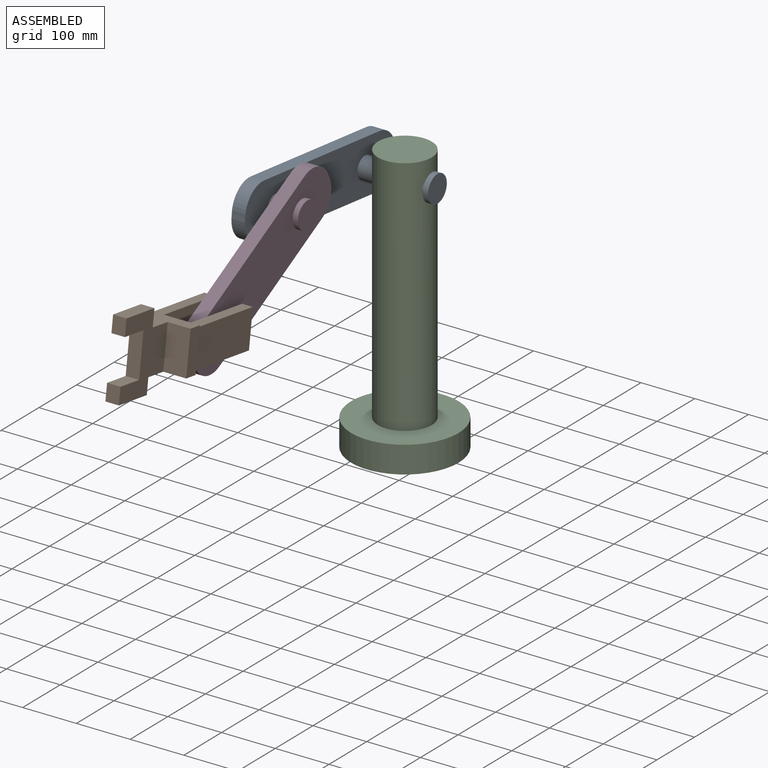
[diagram: assembled view]
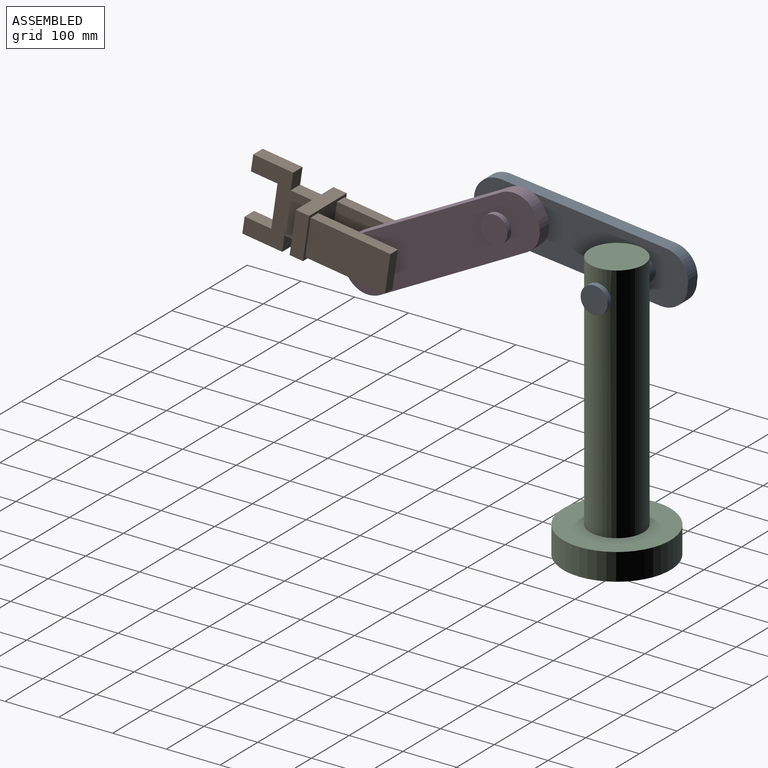
[diagram: assembled view, second angle]
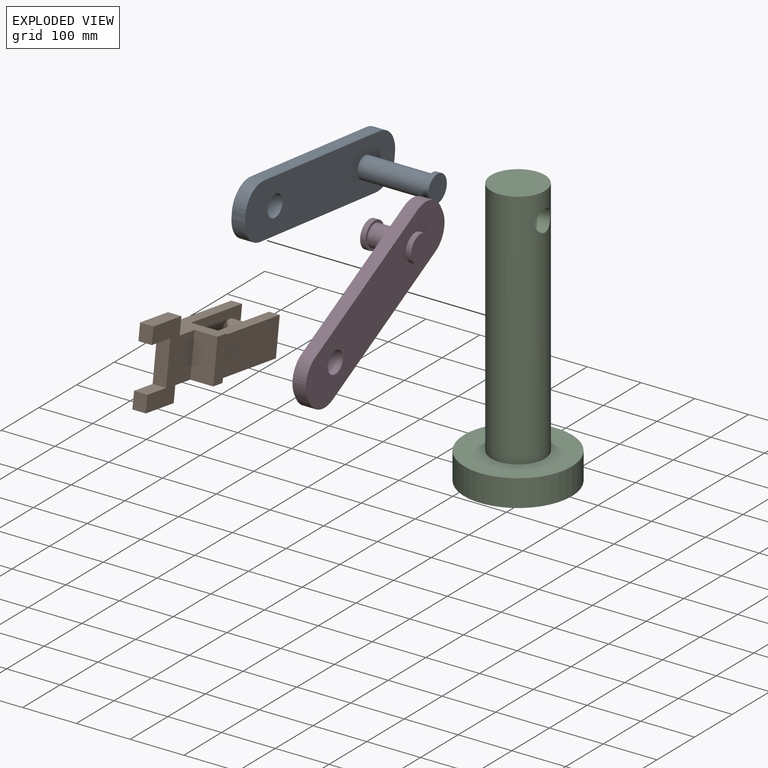
[diagram: exploded view]
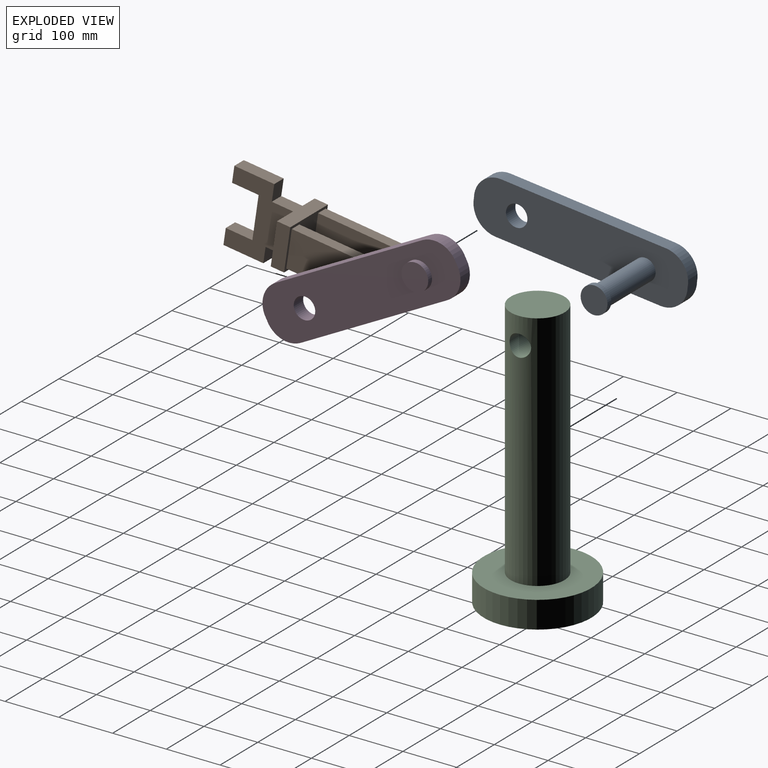
[diagram: exploded view, second angle]
ASSEMBLY  parts=4 mates=3
PART A: 17 faces, bbox 170x400.4x100 mm
  f0: cylinder r=20mm len=150mm, axis (1,0,0), area 17278.5mm2, adj f9,f10,f13,f16
  f1: plane 400.39x100mm, normal (-1,0,0), area 35015.2mm2, adj f2,f3,f4,f5,f6,f7,f8,f15
  f2: cylinder r=45.68mm len=50mm, axis (1,0,0), area 1914mm2, adj f1,f3,f8,f10
  f3: plane 309.05x25mm, normal (0,0,1), area 7726.1mm2, adj f1,f2,f4,f10
  f4: cylinder r=45.87mm len=50mm, axis (1,0,0), area 1887.7mm2, adj f1,f3,f5,f10
  f5: cylinder r=45.87mm len=50mm, axis (1,0,0), area 1887.7mm2, adj f1,f4,f6,f10
  f6: plane 310x25mm, normal (0,0,-1), area 7750mm2, adj f1,f5,f8,f10
  f7: cylinder r=20mm len=40mm, axis (1,0,0), area 3141.6mm2, adj f1,f10
  f8: cylinder r=45.87mm len=50mm, axis (1,0,0), area 1887.7mm2, adj f1,f2,f6,f10
  f9: cylinder r=20mm len=40mm, axis (1,0,0), area 1571.1mm2, adj f0,f10,f16
  f10: plane 400.39x100mm, normal (1,0,0), area 35721.6mm2, adj f0,f2,f3,f4,f5,f6,f7,f8
  f11: cylinder r=25mm len=50mm, axis (-1,0,0), area 1570.8mm2, adj f12,f13
  f12: plane 50x50mm, normal (1,0,0), area 1963.5mm2, adj f11
  f13: plane 50x50mm, normal (-1,0,0), area 706.9mm2, adj f0,f11
  f14: plane 50x50mm, normal (-1,0,0), area 1963.5mm2, adj f15
  f15: cylinder r=25mm len=50mm, axis (1,0,0), area 1570.8mm2, adj f1,f14
  f16: plane 40x20.01mm, normal (1,0,0), area 0.5mm2, adj f0,f9
PART B: 29 faces, bbox 100x290x140 mm
  f0: plane 80x25mm, normal (0,-1,0), area 2000mm2, adj f19,f20,f25,f27
  f1: plane 80x42.74mm, normal (0,-1,0), area 3419.1mm2, adj f2,f4,f5,f20
  f2: plane 100x65mm, normal (0,0,1), area 3500mm2, adj f1,f3,f5,f6,f7,f19,f20,f24
  f3: plane 80x25mm, normal (-1,0,0), area 2000mm2, adj f2,f4,f6,f7
  f4: plane 100x65mm, normal (0,0,-1), area 3500mm2, adj f1,f3,f5,f6,f7,f19,f20,f21
  f5: plane 80x25mm, normal (1,0,0), area 2000mm2, adj f1,f2,f4,f7
  f6: plane 80x32.26mm, normal (0,-1,0), area 2580.9mm2, adj f2,f3,f4,f19
  f7: plane 100x80mm, normal (0,1,0), area 5200mm2, adj f2,f3,f4,f5,f8,f9,f10,f11
  f8: plane 150x20mm, normal (0,0,1), area 3000mm2, adj f7,f9,f11,f12
  f9: plane 150x70mm, normal (1,0,0), area 10500mm2, adj f7,f8,f10,f12
  f10: plane 150x20mm, normal (0,0,-1), area 3000mm2, adj f7,f9,f11,f12
  f11: plane 150x70mm, normal (-1,0,0), area 9243.4mm2, adj f7,f8,f10,f12,f18
  f12: plane 70x20mm, normal (0,1,0), area 1400mm2, adj f8,f9,f10,f11
  f13: plane 150x20mm, normal (0,0,1), area 3000mm2, adj f7,f14,f16,f17
  f14: plane 150x70mm, normal (1,0,0), area 9243.4mm2, adj f7,f13,f15,f17,f18
  f15: plane 150x20mm, normal (0,0,-1), area 3000mm2, adj f7,f14,f16,f17
  f16: plane 150x70mm, normal (-1,0,0), area 10500mm2, adj f7,f13,f15,f17
  f17: plane 70x20mm, normal (0,1,0), area 1400mm2, adj f13,f14,f15,f16
  f18: cylinder r=20mm len=50mm, axis (1,0,0), area 6283.2mm2, adj f11,f14
  f19: plane 140x115mm, normal (-1,0,0), area 9700mm2, adj f0,f2,f4,f6,f21,f22,f23,f24
  f20: plane 140x115mm, normal (1,0,0), area 9700mm2, adj f0,f1,f2,f4,f21,f22,f23,f24
  f21: plane 28.78x25mm, normal (0,1,0), area 719.5mm2, adj f4,f19,f20,f23
  f22: plane 75x25mm, normal (0,0,1), area 1875mm2, adj f19,f20,f24,f26
  f23: plane 75x25mm, normal (0,0,-1), area 1875mm2, adj f19,f20,f21,f28
  f24: plane 31.22x25mm, normal (0,1,0), area 780.5mm2, adj f2,f19,f20,f22
  f25: plane 50x25mm, normal (0,0,-1), area 1250mm2, adj f0,f19,f20,f26
  f26: plane 30x25mm, normal (0,-1,0), area 750mm2, adj f19,f20,f22,f25
  f27: plane 50x25mm, normal (0,0,1), area 1250mm2, adj f0,f19,f20,f28
  f28: plane 30x25mm, normal (0,-1,0), area 750mm2, adj f19,f20,f23,f27
PART C: 6 faces, bbox 200x200x500 mm
  f0: cylinder r=100mm len=200mm, axis (0,0,-1), area 31415.9mm2, adj f1,f2
  f1: plane 200x200mm, normal (0,0,1), area 23561.9mm2, adj f0,f3
  f2: plane 200x200mm, normal (0,0,-1), area 31415.9mm2, adj f0
  f3: cylinder r=50mm len=450mm, axis (0,0,-1), area 138805mm2, adj f1,f4,f5
  f4: plane 100x100mm, normal (0,0,1), area 7854mm2, adj f3
  f5: cylinder r=20mm len=100mm, axis (1,0,0), area 12048mm2, adj f3
PART D: 19 faces, bbox 95x400.2x100 mm
  f0: plane 25x16.57mm, normal (0,1,0), area 414.3mm2, adj f1,f8,f10,f11
  f1: cylinder r=45.88mm len=45mm, axis (-1,0,0), area 1680.6mm2, adj f0,f2,f10,f11
  f2: plane 310.17x25mm, normal (0,0,1), area 7754.2mm2, adj f1,f3,f10,f11
  f3: cylinder r=45.88mm len=45mm, axis (-1,0,0), area 1680.6mm2, adj f2,f4,f10,f11
  f4: plane 25x16.57mm, normal (0,-1,0), area 414.3mm2, adj f3,f5,f10,f11
  f5: cylinder r=45.88mm len=45mm, axis (-1,0,0), area 1680.6mm2, adj f4,f6,f10,f11
  f6: plane 310.17x25mm, normal (0,0,-1), area 7754.2mm2, adj f5,f8,f10,f11
  f7: cylinder r=20mm len=40mm, axis (-1,0,0), area 3141.6mm2, adj f10,f11
  f8: cylinder r=45.88mm len=45mm, axis (-1,0,0), area 1680.6mm2, adj f0,f6,f10,f11
  f9: cylinder r=20mm len=39.65mm, axis (-1,0,0), area 1572.6mm2, adj f11,f12,f15
  f10: plane 400.17x100.03mm, normal (1,0,0), area 35034.1mm2, adj f0,f1,f2,f3,f4,f5,f6,f7
  f11: plane 400.17x100.03mm, normal (-1,0,0), area 35738mm2, adj f0,f1,f2,f3,f4,f5,f6,f7
  f12: cylinder r=20mm len=75mm, axis (1,0,0), area 7852.1mm2, adj f9,f11,f15,f18
  f13: plane 50x50mm, normal (1,0,0), area 1963.5mm2, adj f14
  f14: cylinder r=25mm len=50mm, axis (-1,0,0), area 1570.8mm2, adj f10,f13
  f15: plane 39.65x23.82mm, normal (-1,0,0), area 3mm2, adj f9,f12
  f16: cylinder r=25mm len=50mm, axis (1,0,0), area 1570.8mm2, adj f17,f18
  f17: plane 50x50mm, normal (-1,0,0), area 1963.5mm2, adj f16
  f18: plane 50x50mm, normal (1,0,0), area 706.9mm2, adj f12,f16
PLACE A rot(axis=(-1,0,0),6.3deg) t=(-42.84,27.86,-93.17)mm
PLACE B rot(axis=(-1,0,0),8.4deg) t=(-48.68,36.35,-246.96)mm
PLACE C t=(-43.48,77.61,-95.93)mm fixed
PLACE D rot(axis=(1,0,0),27.9deg) t=(-42.84,261.94,95.5)mm
MATE revolute A.f0 <-> C.f5  axis (1,0,0) through (7.16,77.61,354.07)mm
MATE revolute B.f18 <-> D.f7  axis (1,0,0) through (-80.34,-373.13,268)mm
MATE revolute D.f12 <-> A.f7  axis (1,0,0) through (-142.84,-160.92,380.61)mm
